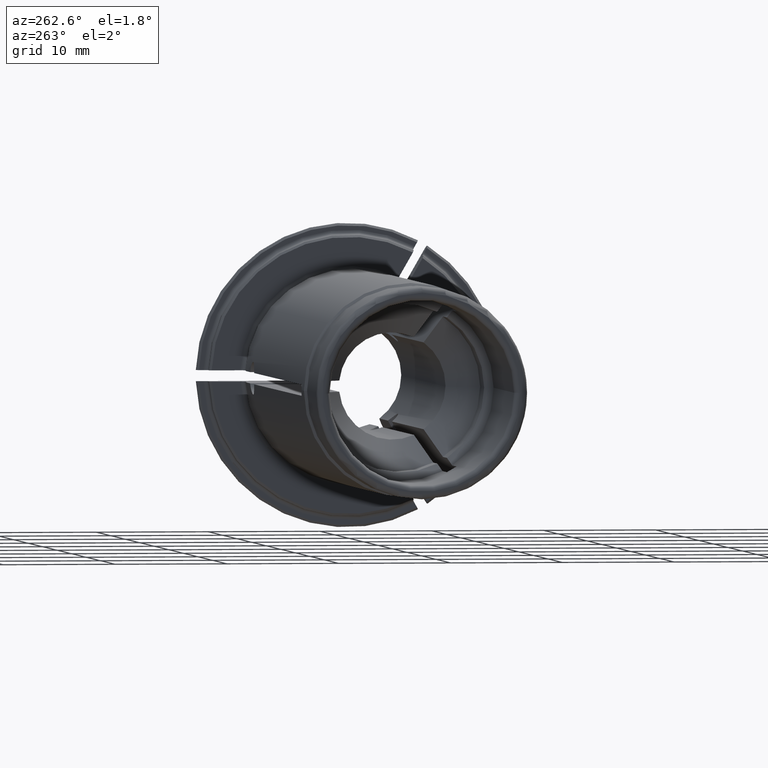
[diagram: clean part render]
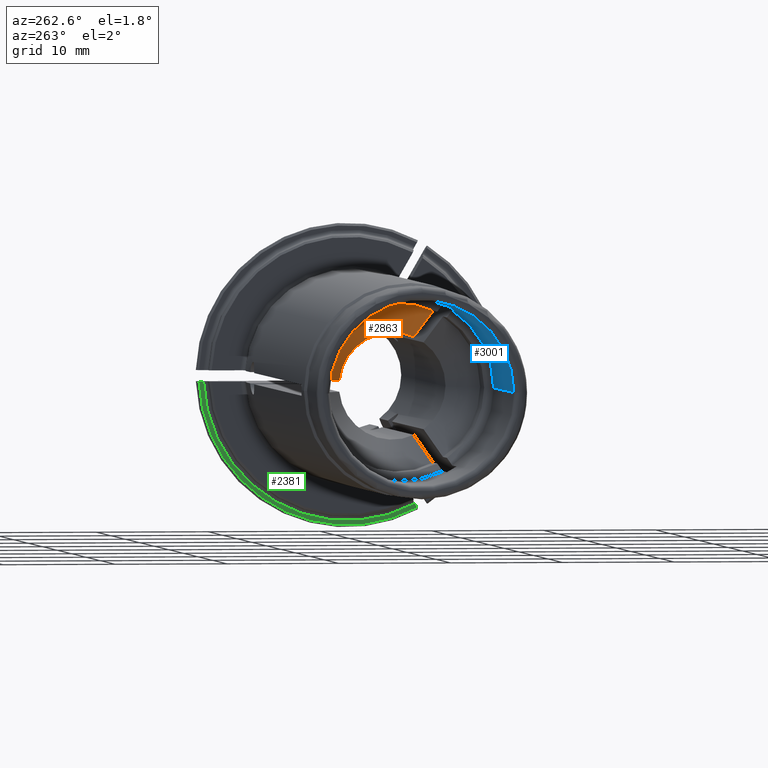
[diagram: same view with three faces highlighted in distinct colors, each labeled with its STEP entity id]
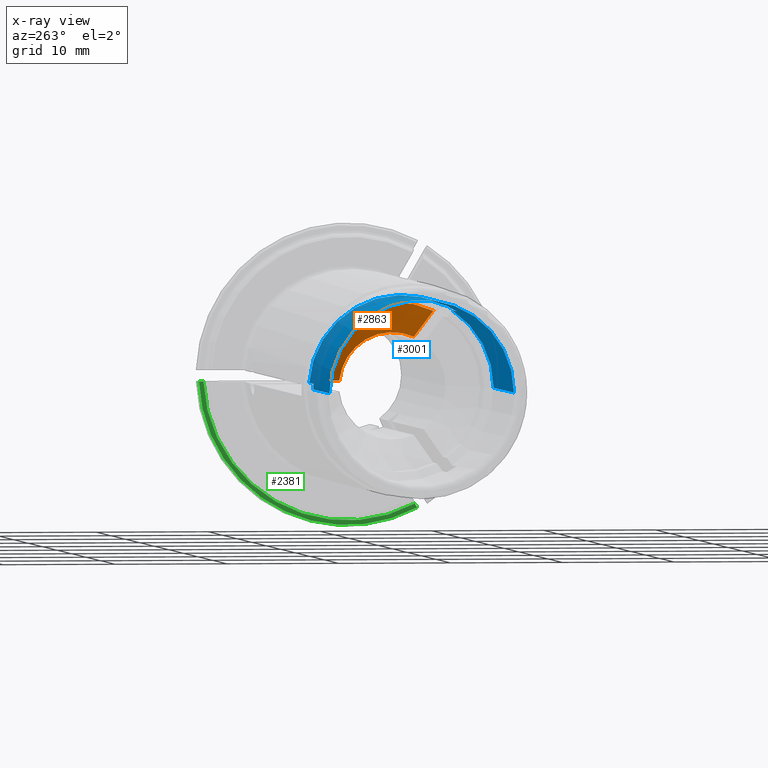
[diagram: x-ray of the same camera — body ghosted, the three highlighted faces saturated]
A machine part, auxiliary view with three faces highlighted in distinct colors.
The next image is the same camera in x-ray (body ghosted, the three faces saturated) — at least one of them is partly hidden behind the body in this view.
Their STEP definitions:

[orange] entity #2863 — the highlighted conical surface has half-angle 45 deg.
#135=CARTESIAN_POINT('',(-2.97625E1,0.E0,0.E0));
#136=DIRECTION('',(1.E0,0.E0,0.E0));
#137=DIRECTION('',(0.E0,9.944736073588E-1,1.049868766404E-1));
#138=AXIS2_PLACEMENT_3D('',#135,#136,#137);
#1173=CARTESIAN_POINT('',(-3.25E1,-3.308644684882E0,6.730740698408E0));
#1174=CARTESIAN_POINT('',(-3.217955302822E1,-3.148063955548E0,
6.452606716485E0));
#1175=CARTESIAN_POINT('',(-3.154946335195E1,-2.832225968110E0,
5.905559275283E0));
#1176=CARTESIAN_POINT('',(-3.063609465032E1,-2.374016110436E0,
5.111916521262E0));
#1177=CARTESIAN_POINT('',(-3.004995493156E1,-2.079603749795E0,
4.601979354256E0));
#1178=CARTESIAN_POINT('',(-2.97625E1,-1.935077575631E0,4.351652677580E0));
#1180=CARTESIAN_POINT('',(-2.97625E1,4.736180555046E0,5.E-1));
#1181=CARTESIAN_POINT('',(-3.004994053724E1,5.025218429062E0,5.E-1));
#1182=CARTESIAN_POINT('',(-3.063606104168E1,5.614023881645E0,5.E-1));
#1183=CARTESIAN_POINT('',(-3.154943009090E1,6.530443987857E0,5.E-1));
#1184=CARTESIAN_POINT('',(-3.217953877170E1,7.162139026575E0,5.E-1));
#1185=CARTESIAN_POINT('',(-3.25E1,7.483314773548E0,5.E-1));
#1219=CARTESIAN_POINT('',(-3.25E1,0.E0,0.E0));
#1220=DIRECTION('',(-1.E0,0.E0,0.E0));
#1221=DIRECTION('',(0.E0,-4.411526246509E-1,8.974320931210E-1));
#1222=AXIS2_PLACEMENT_3D('',#1219,#1220,#1221);
#1654=VERTEX_POINT('',#1180);
#1655=VERTEX_POINT('',#1185);
#1738=VERTEX_POINT('',#1173);
#1739=VERTEX_POINT('',#1178);
#2851=CARTESIAN_POINT('',(-3.113125E1,0.E0,0.E0));
#2852=DIRECTION('',(-1.E0,0.E0,0.E0));
#2853=DIRECTION('',(0.E0,1.E0,0.E0));
#2854=AXIS2_PLACEMENT_3D('',#2851,#2852,#2853);
#2855=CONICAL_SURFACE('',#2854,6.13125E0,4.5E1);
#2856=ORIENTED_EDGE('',*,*,#1938,.T.);
#2857=ORIENTED_EDGE('',*,*,#2019,.F.);
#2858=ORIENTED_EDGE('',*,*,#2704,.T.);
#2860=ORIENTED_EDGE('',*,*,#2859,.F.);
#2861=EDGE_LOOP('',(#2856,#2857,#2858,#2860));
#2862=FACE_OUTER_BOUND('',#2861,.F.);
#2863=ADVANCED_FACE('',(#2862),#2855,.F.);
#139=CIRCLE('',#138,4.7625E0);
#1179=B_SPLINE_CURVE_WITH_KNOTS('',3,(#1173,#1174,#1175,#1176,#1177,#1178),
.UNSPECIFIED.,.F.,.F.,(4,1,1,4),(0.E0,3.333333333333E-1,6.666666666667E-1,1.E0),
.UNSPECIFIED.);
#1186=B_SPLINE_CURVE_WITH_KNOTS('',3,(#1180,#1181,#1182,#1183,#1184,#1185),
.UNSPECIFIED.,.F.,.F.,(4,1,1,4),(0.E0,3.333333333333E-1,6.666666666667E-1,1.E0),
.UNSPECIFIED.);
#1223=CIRCLE('',#1222,7.5E0);
#1938=EDGE_CURVE('',#1738,#1739,#1179,.T.);
#2019=EDGE_CURVE('',#1654,#1739,#139,.T.);
#2704=EDGE_CURVE('',#1654,#1655,#1186,.T.);
#2859=EDGE_CURVE('',#1738,#1655,#1223,.T.);

[blue] entity #3001 — the highlighted cylindrical surface (partial cylindrical patch) has radius 8.25 mm, axis along (-1, 0, 0).
#1311=DIRECTION('',(-1.E0,0.E0,0.E0));
#1312=VECTOR('',#1311,2.978666019086E0);
#1313=CARTESIAN_POINT('',(-3.6E1,-3.684404571108E0,7.381575912798E0));
#1314=LINE('',#1313,#1312);
#1315=CARTESIAN_POINT('',(-3.6E1,0.E0,0.E0));
#1316=DIRECTION('',(1.E0,0.E0,0.E0));
#1317=DIRECTION('',(0.E0,9.981617631516E-1,6.060606060606E-2));
#1318=AXIS2_PLACEMENT_3D('',#1315,#1316,#1317);
#1320=DIRECTION('',(-1.E0,0.E0,0.E0));
#1321=VECTOR('',#1320,2.978666019086E0);
#1322=CARTESIAN_POINT('',(-3.6E1,8.234834546E0,5.E-1));
#1323=LINE('',#1322,#1321);
#1324=CARTESIAN_POINT('',(-3.899862330627E1,8.25E0,0.E0));
#1325=CARTESIAN_POINT('',(-3.899862330627E1,8.25E0,5.549603719508E-2));
#1326=CARTESIAN_POINT('',(-3.899715131026E1,8.248880573926E0,
1.665518194350E-1));
#1327=CARTESIAN_POINT('',(-3.899050179250E1,8.243825294403E0,
3.333620322412E-1));
#1328=CARTESIAN_POINT('',(-3.898310632083E1,8.238206371298E0,
4.444671531185E-1));
#1329=CARTESIAN_POINT('',(-3.897866601909E1,8.234834546E0,5.E-1));
#1331=DIRECTION('',(-1.E0,0.E0,-1.198001491909E-13));
#1332=VECTOR('',#1331,1.100137669373E1);
#1333=CARTESIAN_POINT('',(-3.899862330627E1,8.25E0,0.E0));
#1334=LINE('',#1333,#1332);
#1335=CARTESIAN_POINT('',(-5.E1,0.E0,0.E0));
#1336=DIRECTION('',(1.E0,0.E0,0.E0));
#1337=DIRECTION('',(0.E0,1.E0,0.E0));
#1338=AXIS2_PLACEMENT_3D('',#1335,#1336,#1337);
#1340=DIRECTION('',(-1.E0,0.E0,9.426959947083E-14));
#1341=VECTOR('',#1340,1.4E1);
#1342=CARTESIAN_POINT('',(-3.6E1,-8.25E0,0.E0));
#1343=LINE('',#1342,#1341);
#1344=CARTESIAN_POINT('',(-3.6E1,0.E0,0.E0));
#1345=DIRECTION('',(1.E0,0.E0,0.E0));
#1346=DIRECTION('',(0.E0,-5.515672696839E-1,8.341304136725E-1));
#1347=AXIS2_PLACEMENT_3D('',#1344,#1345,#1346);
#1349=DIRECTION('',(-1.E0,0.E0,0.E0));
#1350=VECTOR('',#1349,2.978666019085E0);
#1351=CARTESIAN_POINT('',(-3.6E1,-4.550429974892E0,6.881575912798E0));
#1352=LINE('',#1351,#1350);
#1353=CARTESIAN_POINT('',(-3.897866601909E1,-3.684404571108E0,
7.381575912798E0));
#1354=CARTESIAN_POINT('',(-3.898752246766E1,-3.783691315799E0,
7.332018400918E0));
#1355=CARTESIAN_POINT('',(-3.899935528249E1,-3.980400251600E0,
7.228836748401E0));
#1356=CARTESIAN_POINT('',(-3.899936440195E1,-4.269929161355E0,
7.061685166505E0));
#1357=CARTESIAN_POINT('',(-3.898753153991E1,-4.457773721453E0,
6.942844697500E0));
#1358=CARTESIAN_POINT('',(-3.897866601909E1,-4.550429974892E0,
6.881575912798E0));
#1379=CARTESIAN_POINT('',(-3.899862330627E1,8.25E0,0.E0));
#1653=VERTEX_POINT('',#1379);
#1658=CARTESIAN_POINT('',(-3.6E1,8.234834546E0,5.E-1));
#1659=CARTESIAN_POINT('',(-3.897866601909E1,8.234834546E0,5.E-1));
#1660=VERTEX_POINT('',#1658);
#1661=VERTEX_POINT('',#1659);
#1746=CARTESIAN_POINT('',(-3.6E1,-3.684404571108E0,7.381575912798E0));
#1747=CARTESIAN_POINT('',(-3.897866601909E1,-3.684404571108E0,
7.381575912798E0));
#1748=VERTEX_POINT('',#1746);
#1749=VERTEX_POINT('',#1747);
#1750=CARTESIAN_POINT('',(-3.6E1,-4.550429974892E0,6.881575912798E0));
#1751=CARTESIAN_POINT('',(-3.897866601909E1,-4.550429974892E0,
6.881575912798E0));
#1752=VERTEX_POINT('',#1750);
#1753=VERTEX_POINT('',#1751);
#1774=CARTESIAN_POINT('',(-3.6E1,-8.25E0,0.E0));
#1775=VERTEX_POINT('',#1774);
#1876=CARTESIAN_POINT('',(-5.E1,8.25E0,0.E0));
#1877=CARTESIAN_POINT('',(-5.E1,-8.25E0,0.E0));
#1878=VERTEX_POINT('',#1876);
#1879=VERTEX_POINT('',#1877);
#2979=CARTESIAN_POINT('',(-2.3725E1,0.E0,0.E0));
#2980=DIRECTION('',(-1.E0,0.E0,0.E0));
#2981=DIRECTION('',(0.E0,1.E0,0.E0));
#2982=AXIS2_PLACEMENT_3D('',#2979,#2980,#2981);
#2983=CYLINDRICAL_SURFACE('',#2982,8.25E0);
#2984=ORIENTED_EDGE('',*,*,#1944,.F.);
#2985=ORIENTED_EDGE('',*,*,#2943,.F.);
#2986=ORIENTED_EDGE('',*,*,#2698,.T.);
#2987=ORIENTED_EDGE('',*,*,#2750,.F.);
#2989=ORIENTED_EDGE('',*,*,#2988,.T.);
#2991=ORIENTED_EDGE('',*,*,#2990,.T.);
#2993=ORIENTED_EDGE('',*,*,#2992,.F.);
#2994=ORIENTED_EDGE('',*,*,#2957,.F.);
#2996=ORIENTED_EDGE('',*,*,#2995,.T.);
#2998=ORIENTED_EDGE('',*,*,#2997,.F.);
#2999=EDGE_LOOP('',(#2984,#2985,#2986,#2987,#2989,#2991,#2993,#2994,#2996,
#2998));
#3000=FACE_OUTER_BOUND('',#2999,.F.);
#3001=ADVANCED_FACE('',(#3000),#2983,.F.);
#1319=CIRCLE('',#1318,8.25E0);
#1330=B_SPLINE_CURVE_WITH_KNOTS('',3,(#1324,#1325,#1326,#1327,#1328,#1329),
.UNSPECIFIED.,.F.,.F.,(4,1,1,4),(0.E0,3.333333333333E-1,6.666666666667E-1,1.E0),
.UNSPECIFIED.);
#1339=CIRCLE('',#1338,8.25E0);
#1348=CIRCLE('',#1347,8.25E0);
#1359=B_SPLINE_CURVE_WITH_KNOTS('',3,(#1353,#1354,#1355,#1356,#1357,#1358),
.UNSPECIFIED.,.F.,.F.,(4,1,1,4),(0.E0,3.333333333333E-1,6.666666666667E-1,1.E0),
.UNSPECIFIED.);
#1944=EDGE_CURVE('',#1748,#1749,#1314,.T.);
#2698=EDGE_CURVE('',#1660,#1661,#1323,.T.);
#2750=EDGE_CURVE('',#1653,#1661,#1330,.T.);
#2943=EDGE_CURVE('',#1660,#1748,#1319,.T.);
#2957=EDGE_CURVE('',#1752,#1775,#1348,.T.);
#2988=EDGE_CURVE('',#1653,#1878,#1334,.T.);
#2990=EDGE_CURVE('',#1878,#1879,#1339,.T.);
#2992=EDGE_CURVE('',#1775,#1879,#1343,.T.);
#2995=EDGE_CURVE('',#1752,#1753,#1352,.T.);
#2997=EDGE_CURVE('',#1749,#1753,#1359,.T.);

[green] entity #2381 — the highlighted planar face has unit normal (1, 0, 0).
#630=CARTESIAN_POINT('',(1.E0,0.E0,0.E0));
#631=DIRECTION('',(-1.E0,0.E0,0.E0));
#632=DIRECTION('',(0.E0,9.992930962909E-1,-3.759398496241E-2));
#633=AXIS2_PLACEMENT_3D('',#630,#631,#632);
#651=DIRECTION('',(0.E0,5.E-1,8.660254037844E-1));
#652=VECTOR('',#651,4.002917452113E-1);
#653=CARTESIAN_POINT('',(1.E0,-6.212286388442E0,-1.175999565595E1));
#654=LINE('',#653,#652);
#655=DIRECTION('',(0.E0,-1.E0,0.E0));
#656=VECTOR('',#655,4.002917452113E-1);
#657=CARTESIAN_POINT('',(1.E0,1.329059818067E1,-5.E-1));
#658=LINE('',#657,#656);
#734=CARTESIAN_POINT('',(1.E0,0.E0,0.E0));
#735=DIRECTION('',(1.E0,0.E0,0.E0));
#736=DIRECTION('',(0.E0,-4.660574043284E-1,-8.847544833855E-1));
#737=AXIS2_PLACEMENT_3D('',#734,#735,#736);
#1633=CARTESIAN_POINT('',(1.E0,1.329059818067E1,-5.E-1));
#1634=CARTESIAN_POINT('',(1.E0,1.289030643546E1,-5.E-1));
#1635=VERTEX_POINT('',#1633);
#1636=VERTEX_POINT('',#1634);
#1828=CARTESIAN_POINT('',(1.E0,-6.212286388442E0,-1.175999565595E1));
#1829=CARTESIAN_POINT('',(1.E0,-6.012140515837E0,-1.141333283567E1));
#1830=VERTEX_POINT('',#1828);
#1831=VERTEX_POINT('',#1829);
#2367=CARTESIAN_POINT('',(1.E0,0.E0,0.E0));
#2368=DIRECTION('',(1.E0,0.E0,0.E0));
#2369=DIRECTION('',(0.E0,-1.E0,0.E0));
#2370=AXIS2_PLACEMENT_3D('',#2367,#2368,#2369);
#2371=PLANE('',#2370);
#2373=ORIENTED_EDGE('',*,*,#2372,.F.);
#2374=ORIENTED_EDGE('',*,*,#2333,.F.);
#2376=ORIENTED_EDGE('',*,*,#2375,.T.);
#2378=ORIENTED_EDGE('',*,*,#2377,.F.);
#2379=EDGE_LOOP('',(#2373,#2374,#2376,#2378));
#2380=FACE_OUTER_BOUND('',#2379,.F.);
#2381=ADVANCED_FACE('',(#2380),#2371,.F.);
#634=CIRCLE('',#633,1.33E1);
#738=CIRCLE('',#737,1.29E1);
#2333=EDGE_CURVE('',#1635,#1830,#634,.T.);
#2372=EDGE_CURVE('',#1830,#1831,#654,.T.);
#2375=EDGE_CURVE('',#1635,#1636,#658,.T.);
#2377=EDGE_CURVE('',#1831,#1636,#738,.T.);